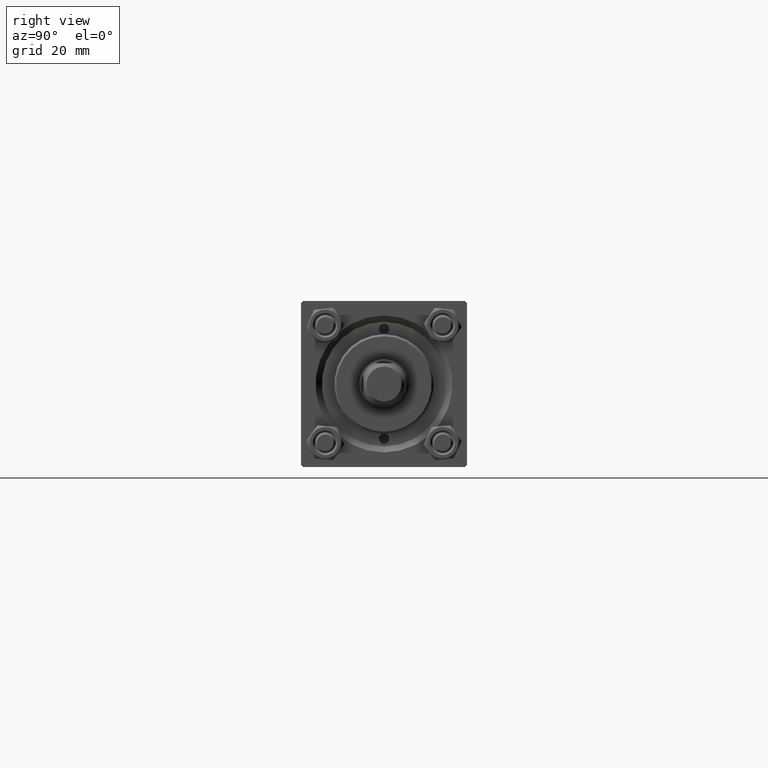
[diagram: clean part render]
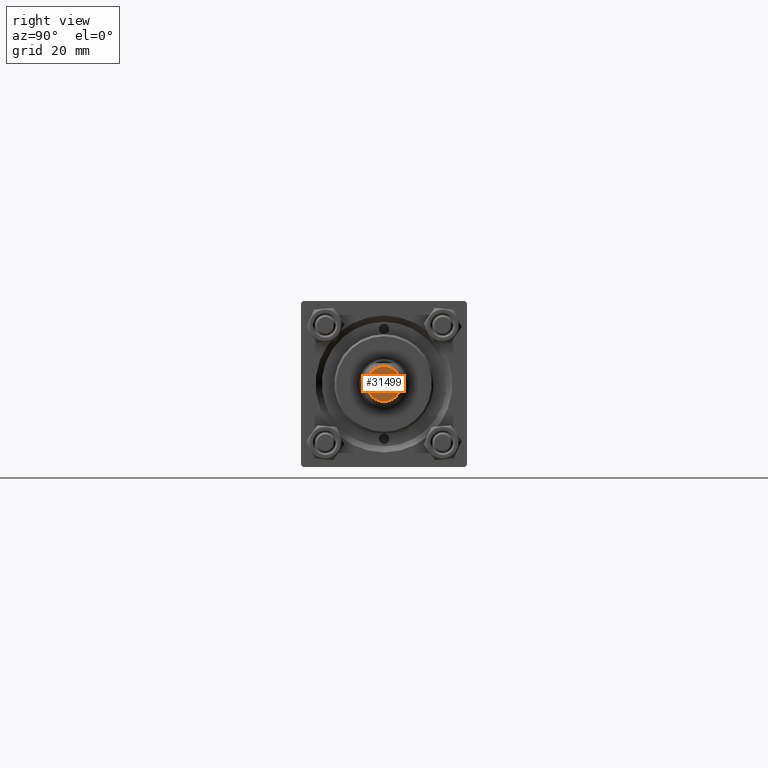
[diagram: same view with one face highlighted and labeled with its STEP entity id]
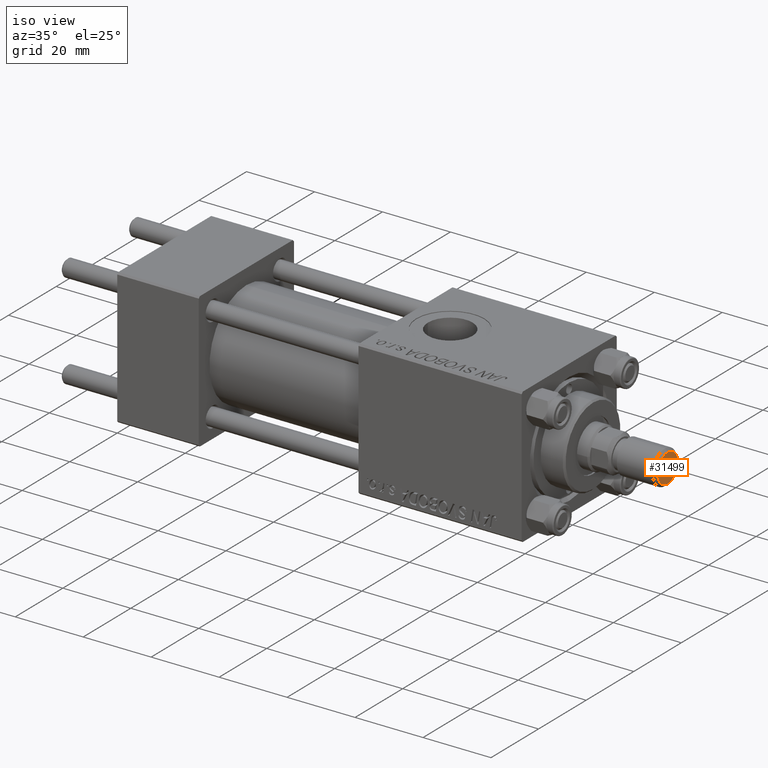
[diagram: same view with one face highlighted and labeled with its STEP entity id]
A machine part, right view. The second image highlights one B-rep face of the part: STEP entity #31499.
A second angle (iso view) of the same face is appended — the face is thin or edge-on in the first view.
In plain terms, the highlighted planar face has unit normal (-1, 0, 0).
Its self-contained STEP definition (entity closure, byte-faithful):
#264 = DIRECTION ( 'NONE',  ( -0.000000000000000000, -0.000000000000000000, -1.000000000000000000 ) ) ;
#2949 = CARTESIAN_POINT ( 'NONE',  ( 0.000000000000000000, 0.000000000000000000, 0.000000000000000000 ) ) ;
#3698 = CARTESIAN_POINT ( 'NONE',  ( 4.199999999999993960, 0.000000000000000000, 0.000000000000000000 ) ) ;
#6765 = ORIENTED_EDGE ( 'NONE', *, *, #35864, .T. ) ;
#7750 = AXIS2_PLACEMENT_3D ( 'NONE', #35173, #264, #31376 ) ;
#9812 = DIRECTION ( 'NONE',  ( 0.000000000000000000, 0.000000000000000000, 1.000000000000000000 ) ) ;
#13135 = DIRECTION ( 'NONE',  ( 1.000000000000000000, 0.000000000000000000, -0.000000000000000000 ) ) ;
#18258 = DIRECTION ( 'NONE',  ( -0.000000000000000000, -0.000000000000000000, -1.000000000000000000 ) ) ;
#18671 = PLANE ( 'NONE',  #27143 ) ;
#24091 = VERTEX_POINT ( 'NONE', #26881 ) ;
#24620 = ORIENTED_EDGE ( 'NONE', *, *, #41189, .T. ) ;
#24873 = FACE_OUTER_BOUND ( 'NONE', #31186, .T. ) ;
#26881 = CARTESIAN_POINT ( 'NONE',  ( -4.199999999999993960, 5.633375276077821154E-16, 0.000000000000000000 ) ) ;
#27143 = AXIS2_PLACEMENT_3D ( 'NONE', #36553, #9812, #13135 ) ;
#28043 = VERTEX_POINT ( 'NONE', #3698 ) ;
#29781 = AXIS2_PLACEMENT_3D ( 'NONE', #2949, #18258, #42447 ) ;
#31186 = EDGE_LOOP ( 'NONE', ( #24620, #6765 ) ) ;
#31376 = DIRECTION ( 'NONE',  ( 1.000000000000000000, 0.000000000000000000, 0.000000000000000000 ) ) ;
#31499 = ADVANCED_FACE ( 'NONE', ( #24873 ), #18671, .F. ) ;
#35173 = CARTESIAN_POINT ( 'NONE',  ( 0.000000000000000000, 0.000000000000000000, 0.000000000000000000 ) ) ;
#35864 = EDGE_CURVE ( 'NONE', #24091, #28043, #47590, .T. ) ;
#36553 = CARTESIAN_POINT ( 'NONE',  ( 0.000000000000000000, 0.000000000000000000, 0.000000000000000000 ) ) ;
#41189 = EDGE_CURVE ( 'NONE', #28043, #24091, #47655, .T. ) ;
#42447 = DIRECTION ( 'NONE',  ( 1.000000000000000000, 0.000000000000000000, 0.000000000000000000 ) ) ;
#47590 = CIRCLE ( 'NONE', #7750, 4.199999999999993960 ) ;
#47655 = CIRCLE ( 'NONE', #29781, 4.199999999999993960 ) ;